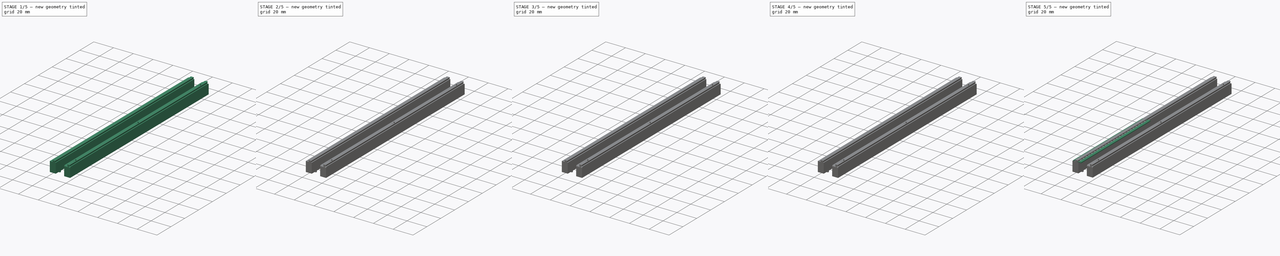
[diagram: build sequence overview — one tinted view per stage of 5, left to right]
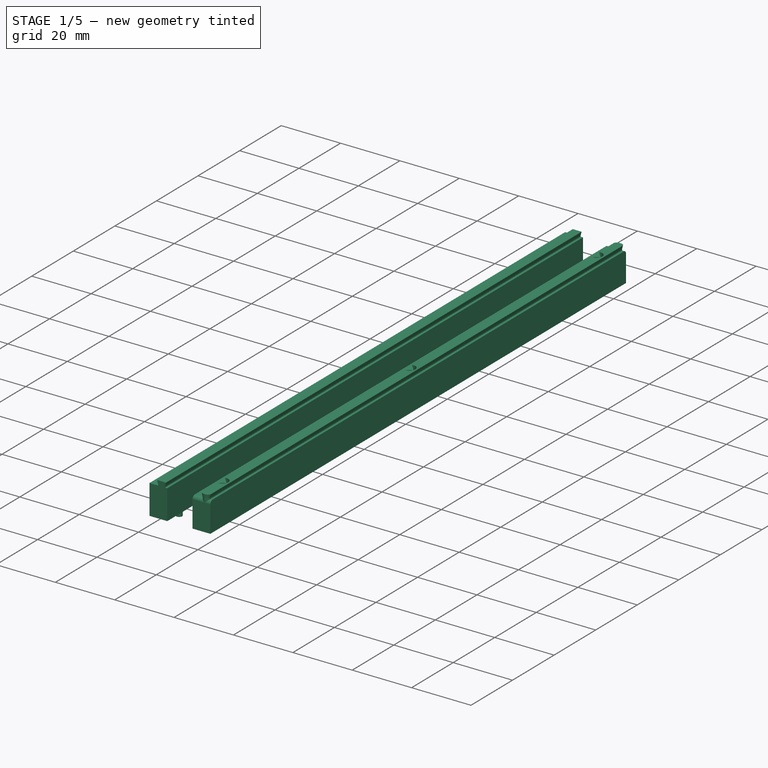
[diagram: stage 1 of 5 — iso view after this stage's code; geometry added in this stage tinted green]
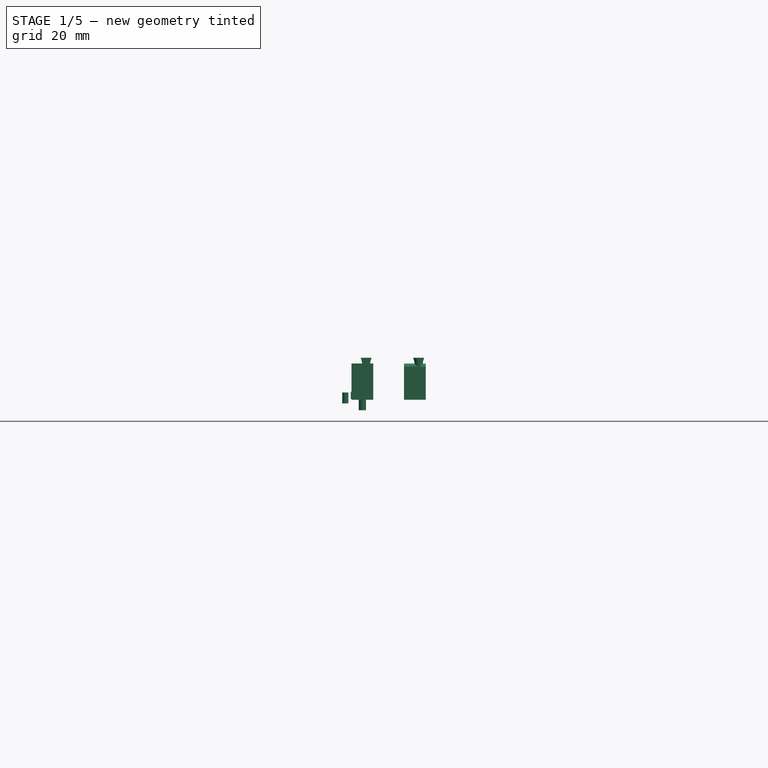
[diagram: stage 1 of 5 — front view after this stage's code; geometry added in this stage tinted green]
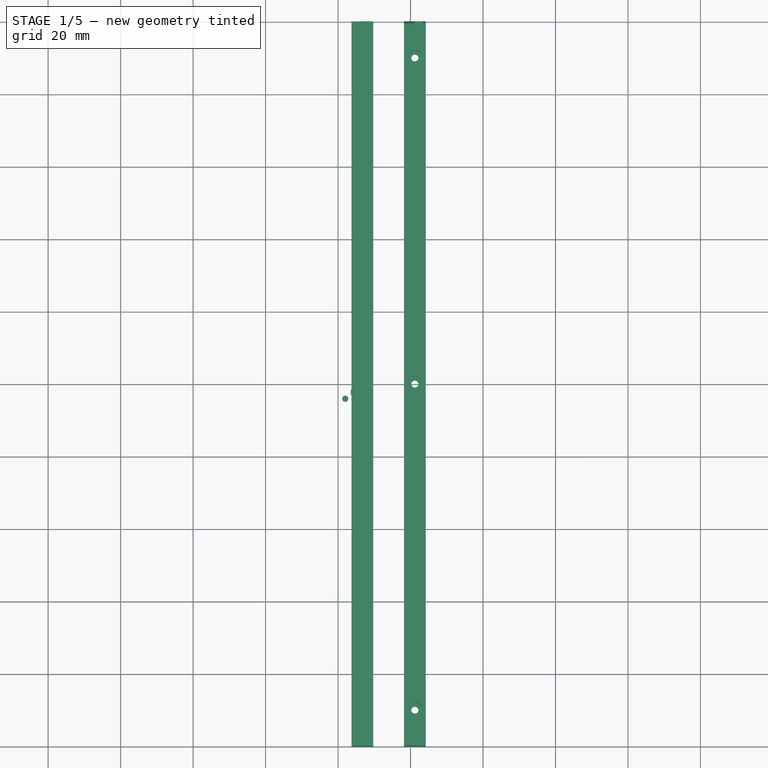
[diagram: stage 1 of 5 — top view after this stage's code; geometry added in this stage tinted green]
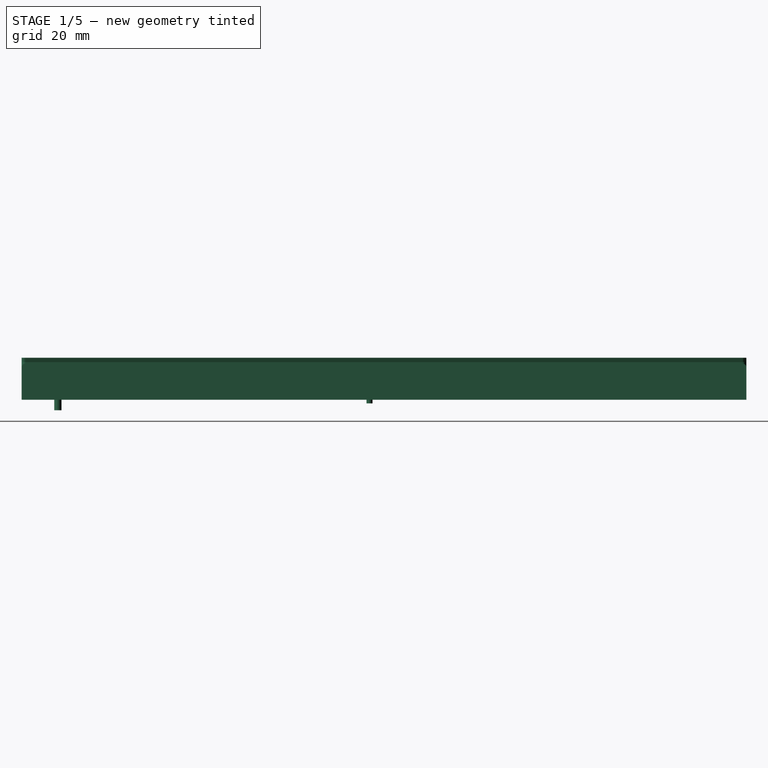
[diagram: stage 1 of 5 — right view after this stage's code; geometry added in this stage tinted green]
FCSTD DOCUMENT  (FreeCAD 0.15R4671 (Git))
Label: strip_feeder_single
License: CreativeCommons Attribution-ShareAlike
LicenseURL: http://creativecommons.org/licenses/by-sa/4.0/
objects: Part::Box×27, Part::Prism×25, Sketcher::SketchObject×5, PartDesign::Pocket×5, Part::Feature×2, PartDesign::LinearPattern×2, Part::MultiFuse×1, Part::Cut×1, Part::FeaturePython×1, PartDesign::Fillet×1, Part::Mirroring×1
note: 76 computed .brp shape members not serialized (recipe doc carries the construction recipe); baked Part::Feature solids carry a one-line shape summary decoded from their .brp

FEATURE [Part::Prism] prism123
  Circumradius = 0.835
  Height = 3
  Placement = pos=(2,96,-1) rot=(0,0,1;0rad)
  Polygon = 20
FEATURE [Part::Box] cube128
  Height = 2
  Length = 2
  Placement = pos=(3.5,97,0.2) rot=(0,0,1;0rad)
  Width = 1.5
FEATURE [Part::Box] Box  label="Cube"
  Height = 11.6
  Length = 70
  Placement = pos=(-7.5,0,0) rot=(0,0,1;0rad)
  Width = 200
FEATURE [Sketcher::SketchObject] Sketch002  label="base"
  Placement = pos=(-7.5,0,0) rot=(1,0,0;1.5708rad)
  Support = -> Box [Face3]
  sketch-geometry (17):
    g0: LineSegment [constr] StartX=0 StartY=11.6 StartZ=0 EndX=0 EndY=0 EndZ=0
    g1: LineSegment [constr] StartX=0 StartY=0 StartZ=0 EndX=16 EndY=0 EndZ=0
    g2: LineSegment [constr] StartX=16 StartY=11.6 StartZ=0 EndX=13.75 EndY=11.6 EndZ=0
    g3: LineSegment StartX=14.1 StartY=10 StartZ=0 EndX=11.2 EndY=10 EndZ=0
    g4: LineSegment [constr] StartX=2.25 StartY=11.6 StartZ=0 EndX=0 EndY=11.6 EndZ=0
    g5: LineSegment [constr] StartX=16 StartY=11.6 StartZ=0 EndX=16 EndY=0 EndZ=0
    g6: LineSegment [constr] StartX=0 StartY=0 StartZ=0 EndX=1.9 EndY=10 EndZ=0
    g7: LineSegment [constr] StartX=16 StartY=0 StartZ=0 EndX=14.1 EndY=10 EndZ=0
    g8: LineSegment StartX=1.9 StartY=10 StartZ=0 EndX=1.9 EndY=10.4 EndZ=0
    g9: LineSegment StartX=1.9 StartY=10.4 StartZ=0 EndX=2.25 EndY=11.6 EndZ=0
    g10: LineSegment StartX=13.75 StartY=11.6 StartZ=0 EndX=14.1 EndY=10.4 EndZ=0
    g11: LineSegment StartX=14.1 StartY=10.4 StartZ=0 EndX=14.1 EndY=10 EndZ=0
    g12: LineSegment StartX=11.2 StartY=10 StartZ=0 EndX=11.2 EndY=3 EndZ=0
    g13: LineSegment StartX=11.2 StartY=3 StartZ=0 EndX=2.7 EndY=3 EndZ=0
    g14: LineSegment StartX=2.7 StartY=3 StartZ=0 EndX=2.7 EndY=10 EndZ=0
    g15: LineSegment StartX=2.7 StartY=10 StartZ=0 EndX=1.9 EndY=10 EndZ=0
    g16: LineSegment StartX=2.25 StartY=11.6 StartZ=0 EndX=13.75 EndY=11.6 EndZ=0
  constraints (47):
    c: Vertical(g0)
    c: Coincident(g0,g1)
    c: Horizontal(g1)
    c: Horizontal(g2)
    c: Horizontal(g3)
    c: Horizontal(g4)
    c: Coincident(g0,g4)
    c: Coincident(g5,g2)
    c: Coincident(g5,g1)
    c: Vertical(g5)
    c: Equal(g2,g4)
    c: Coincident(g6,g0)
    c: Coincident(g6,g15)
    c: Coincident(g7,g1)
    c: Equal(g7,g6)
    c: DistanceX(g4,g2) = 11.5
    c: DistanceX(g1) = 16
    c: Coincident(g15,g8)
    c: Vertical(g8)
    c: Coincident(g8,g9)
    c: Coincident(g9,g4)
    c: Coincident(g2,g10)
    c: Coincident(g10,g11)
    c: Coincident(g11,g3)
    c: Vertical(g11)
    c: Equal(g11,g8)
    c: Equal(g10,g9)
    c: DistanceY(g11) = -0.4
    c: Coincident(g7,g3)
    c: Coincident(g12,g13)
    c: Coincident(g13,g14)
    c: Horizontal(g13)
    c: Vertical(g12)
    c: Vertical(g14)
    c: Tangent(g3,g15)
    c: Coincident(g14,g15)
    c: Coincident(g12,g3)
    c: DistanceX(g6,g3) = 12.2
    c: DistanceY(g14) = 7
    c: DistanceX(g15) = -0.8
    c: Distance(g4,g15) = 1.6
    c: DistanceX(g13) = -8.5
    c: Distance(g14,g1) = 10
    c: DistanceX(g0) = 0
    c: DistanceY(g0) = 0
    c: Coincident(g4,g16)
    c: Coincident(g16,g2)
FEATURE [PartDesign::Pocket] Pocket
  Length = 5
  Placement = pos=(-7.5,0,0) rot=(0,0,1;0rad)
  Sketch = -> Sketch002
  Type = 1
FEATURE [PartDesign::LinearPattern] LinearPattern
  Direction = -> Sketch002 [H_Axis]
  Length = 58
  Occurrences = 5
  Originals = -> [Pocket]
  Placement = pos=(-7.5,0,0) rot=(0,0,1;0rad)
FEATURE [Sketcher::SketchObject] Sketch
  ExternalGeometry = -> [LinearPattern]
  Placement = pos=(-7.5,0,0) rot=(1,0,0;1.5708rad)
  Support = -> LinearPattern [Face2]
  sketch-geometry (8):
    g0: LineSegment StartX=11.2 StartY=15.1915 StartZ=0 EndX=17.2 EndY=15.1915 EndZ=0
    g1: LineSegment StartX=17.2 StartY=15.1915 StartZ=0 EndX=17.2 EndY=-5.90318 EndZ=0
    g2: LineSegment StartX=17.2 StartY=-5.90318 StartZ=0 EndX=11.2 EndY=-5.90318 EndZ=0
    g3: LineSegment StartX=11.2 StartY=-5.90318 StartZ=0 EndX=11.2 EndY=15.1915 EndZ=0
    g4: LineSegment StartX=-5.79076 StartY=25.732 StartZ=0 EndX=76.618 EndY=25.732 EndZ=0
    g5: LineSegment StartX=76.618 StartY=25.732 StartZ=0 EndX=76.618 EndY=-13.1532 EndZ=0
    g6: LineSegment StartX=76.618 StartY=-13.1532 StartZ=0 EndX=-5.79076 EndY=-13.1532 EndZ=0
    g7: LineSegment StartX=-5.79076 StartY=-13.1532 StartZ=0 EndX=-5.79076 EndY=25.732 EndZ=0
  constraints (18):
    c: Coincident(g2,g3)
    c: Horizontal(g2)
    c: Horizontal(g0)
    c: Vertical(g3)
    c: Vertical(g1)
    c: Vertical(g5)
    c: Vertical(g7)
    c: Horizontal(g4)
    c: Horizontal(g6)
    c: Coincident(g0,g3)
    c: Coincident(g0,g1)
    c: Coincident(g1,g2)
    c: Coincident(g4,g7)
    c: Coincident(g4,g5)
    c: Coincident(g5,g6)
    c: Coincident(g6,g7)
    c: PointOnObject(g-3,g3)
    c: PointOnObject(g-4,g1)
FEATURE [PartDesign::Pocket] Pocket001
  Length = 5
  Placement = pos=(-7.5,0,0) rot=(0,0,1;0rad)
  Sketch = -> Sketch
  Type = 1
FEATURE [Part::Feature] tape_12mm004  label="tape_12mm002"
  Placement = pos=(1,0,0) rot=(0,0,1;0rad)
  shape: bbox 12 x 200 x 0.8 mm, 1246 faces, 0 solids (baked)
FEATURE [Sketcher::SketchObject] Sketch003
  ExternalGeometry = -> [Pocket001]
  Placement = pos=(8.9,0,0) rot=(0.57735,0.57735,0.57735;2.0944rad)
  Support = -> Pocket001 [Face3]
  sketch-geometry (5):
    g0: Circle CenterX=21.45 CenterY=-100 CenterZ=0 NormalX=0 NormalY=0 NormalZ=1 Radius=1
    g1: LineSegment [constr] StartX=21.45 StartY=-190 StartZ=0 EndX=21.45 EndY=-100 EndZ=0
    g2: LineSegment [constr] StartX=21.45 StartY=-100 StartZ=0 EndX=21.45 EndY=-10 EndZ=0
    g3: Circle CenterX=21.45 CenterY=-10 CenterZ=0 NormalX=0 NormalY=0 NormalZ=1 Radius=1
    g4: Circle CenterX=21.45 CenterY=-190 CenterZ=0 NormalX=0 NormalY=0 NormalZ=1 Radius=1
  constraints (11):
    c: Radius(g0) = 1
    c: Coincident(g1,g0)
    c: Vertical(g1)
    c: Coincident(g1,g2)
    c: Vertical(g2)
    c: Equal(g2,g1)
    c: Coincident(g3,g2)
    c: Coincident(g4,g1)
    c: Equal(g4,g3)
    c: Equal(g3,g0)
    c: DistanceY(g2) = 90
FEATURE [PartDesign::Pocket] Pocket002
  Length = 5
  Placement = pos=(-7.5,0,0) rot=(0,0,1;0rad)
  Sketch = -> Sketch003
  Type = 1
FEATURE [PartDesign::LinearPattern] LinearPattern001
  Direction = -> Sketch003 [H_Axis]
  Length = 30
  Occurrences = 3
  Originals = -> [Pocket002]
  Placement = pos=(-7.5,0,0) rot=(0,0,1;0rad)
FEATURE [Sketcher::SketchObject] Sketch004
  ExternalGeometry = -> [Pocket002]
  Placement = pos=(-7.5,0,0) rot=(1,0,0;3.14159rad)
  Support = -> Pocket002 [Face9]
  sketch-geometry (5):
    g0: Circle CenterX=14.2 CenterY=-190 CenterZ=0 NormalX=0 NormalY=0 NormalZ=1 Radius=1
    g1: Circle CenterX=14.2 CenterY=-100 CenterZ=0 NormalX=0 NormalY=0 NormalZ=1 Radius=1
    g2: Circle CenterX=14.2 CenterY=-10 CenterZ=0 NormalX=0 NormalY=0 NormalZ=1 Radius=1
    g3: LineSegment [constr] StartX=14.2 StartY=-10 StartZ=0 EndX=14.2 EndY=-100 EndZ=0
    g4: LineSegment [constr] StartX=14.2 StartY=-100 StartZ=0 EndX=14.2 EndY=-190 EndZ=0
  constraints (12):
    c: Symmetric(g-3,g-4,g1)
    c: Equal(g0,g1)
    c: Equal(g1,g2)
    c: Radius(g2) = 1
    c: Coincident(g3,g2)
    c: Coincident(g3,g1)
    c: Vertical(g3)
    c: Coincident(g3,g4)
    c: Coincident(g4,g0)
    c: Vertical(g4)
    c: Equal(g3,g4)
    c: DistanceY(g4) = -90
FEATURE [PartDesign::Pocket] Pocket003
  Length = 15
  Placement = pos=(-7.5,0,0) rot=(0,0,1;0rad)
  Sketch = -> Sketch004
  Type = 0
FEATURE [Sketcher::SketchObject] Sketch005
  ExternalGeometry = -> [Pocket003]
  Placement = pos=(-7.5,0,11.6) rot=(0,0,1;0rad)
  Support = -> Pocket003 [Face6]
  sketch-geometry (3):
    g0: Circle CenterX=14.2 CenterY=190 CenterZ=0 NormalX=0 NormalY=0 NormalZ=1 Radius=2
    g1: Circle CenterX=14.2 CenterY=100 CenterZ=0 NormalX=0 NormalY=0 NormalZ=1 Radius=2
    g2: Circle CenterX=14.2 CenterY=10 CenterZ=0 NormalX=0 NormalY=0 NormalZ=1 Radius=2
  constraints (6):
    c: Coincident(g0,g-5)
    c: Radius(g0) = 2
    c: Coincident(g1,g-4)
    c: Coincident(g2,g-3)
    c: Equal(g2,g1)
    c: Equal(g1,g0)
FEATURE [PartDesign::Pocket] Pocket004
  Length = 4.5
  Placement = pos=(-7.5,0,0) rot=(0,0,1;0rad)
  Sketch = -> Sketch005
  Type = 0
FEATURE [Part::FeaturePython] Screw  label="M2x10-Screw"  # Fasteners workbench fastener (typed FeaturePython)
  Placement = pos=(6.7,10,7.1) rot=(0,0,1;0rad)
  baseObject = -> Pocket004 [Edge79]
  diameter = 2
  invert = true
  length = 5
  matchOuter = true
  offset = 0
  thread = false
  type = 16
FEATURE [PartDesign::Fillet] Fillet
  Base = -> Pocket004 [Edge9,Edge8,Edge7,Edge3,Edge4,Edge5,Edge39,Edge54,Edge53,Edge22,Edge20,Edge18]
  Placement = pos=(-7.5,0,0) rot=(0,0,1;0rad)
  Radius = 1.1
FEATURE [Part::Mirroring] Part__Mirroring001  label="Fillet (Mirror #1)"
  Base = (0,0,0)
  Normal = (1,0,0)
  Placement = pos=(14.5,200,0) rot=(0,0,1;3.14159rad)
  Source = -> Fillet
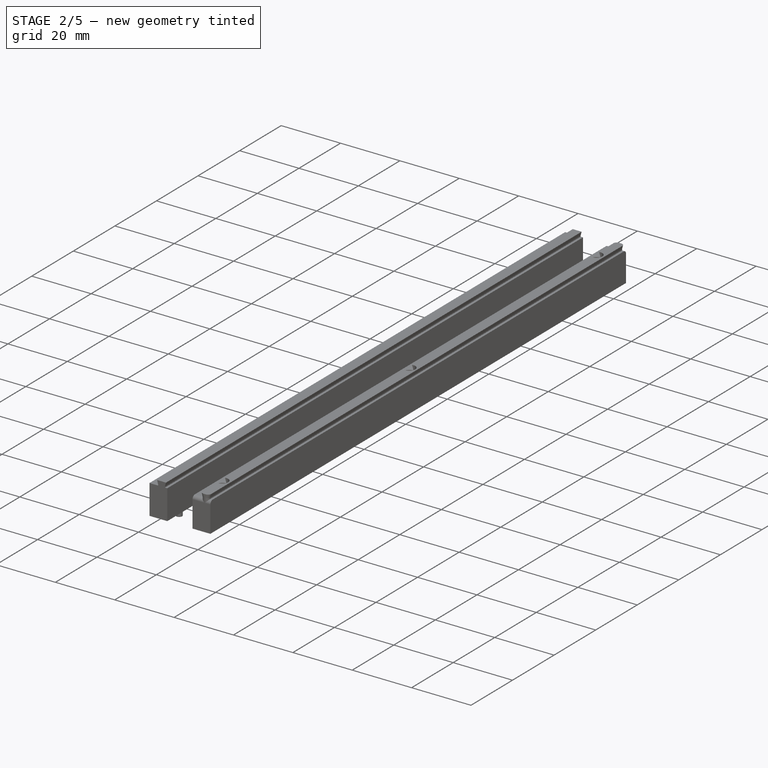
[diagram: stage 2 of 5 — iso view after this stage's code; geometry added in this stage tinted green]
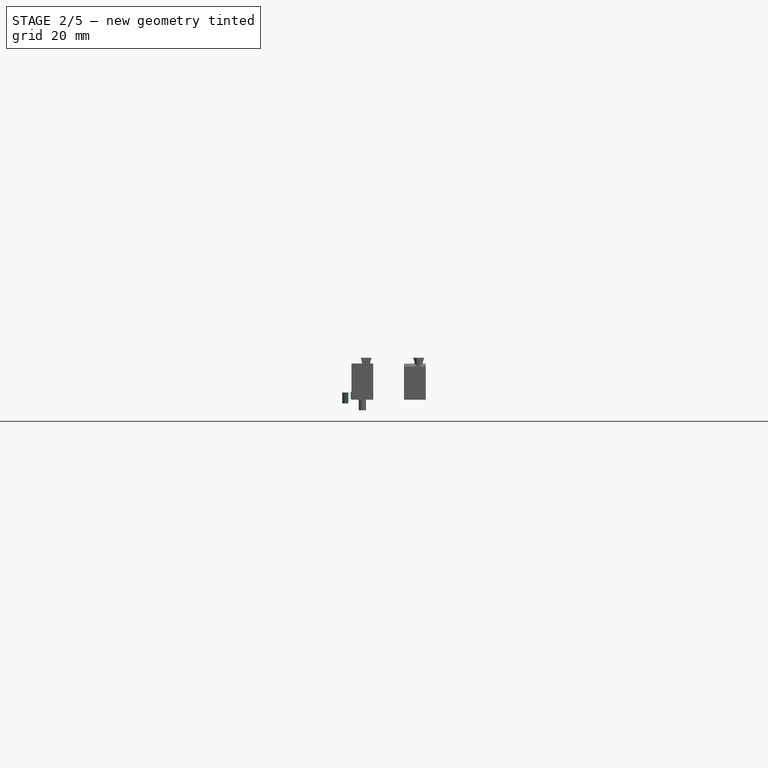
[diagram: stage 2 of 5 — front view after this stage's code; geometry added in this stage tinted green]
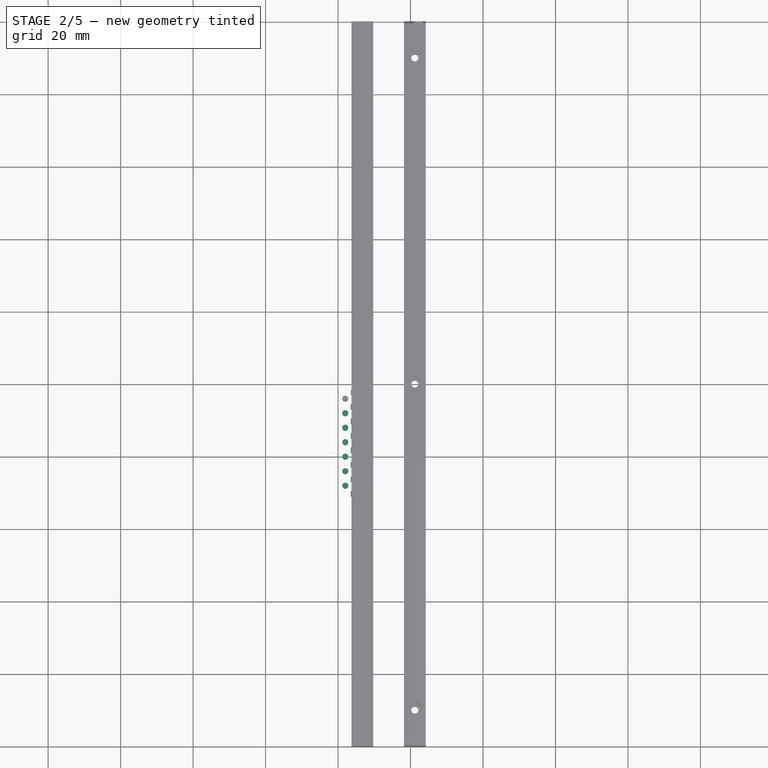
[diagram: stage 2 of 5 — top view after this stage's code; geometry added in this stage tinted green]
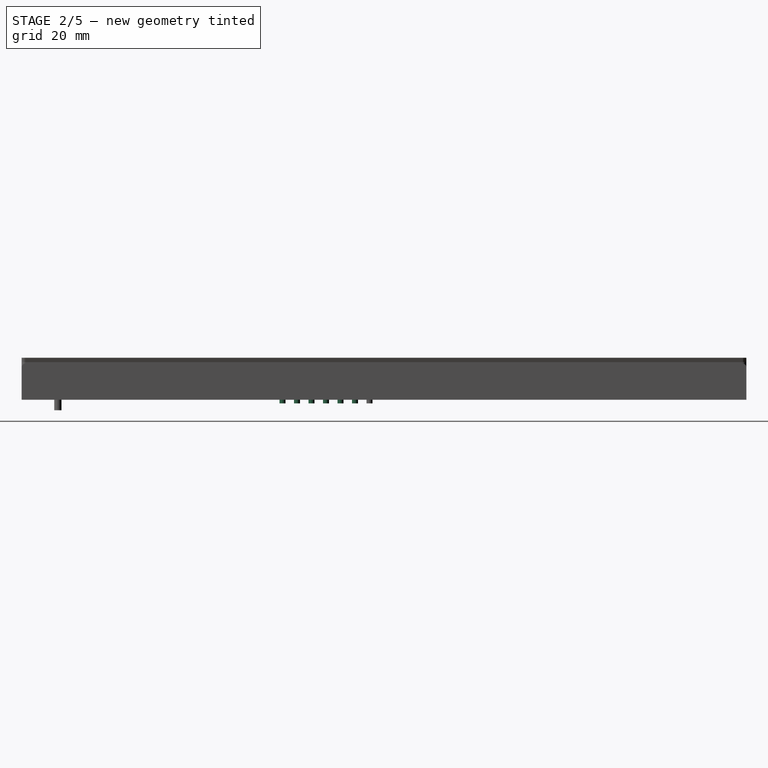
[diagram: stage 2 of 5 — right view after this stage's code; geometry added in this stage tinted green]
FEATURE [Part::Box] cube121
  Height = 2
  Length = 2
  Placement = pos=(3.5,69,0.2) rot=(0,0,1;0rad)
  Width = 1.5
FEATURE [Part::Prism] prism117
  Circumradius = 0.835
  Height = 3
  Placement = pos=(2,72,-1) rot=(0,0,1;0rad)
  Polygon = 20
FEATURE [Part::Box] cube122
  Height = 2
  Length = 2
  Placement = pos=(3.5,73,0.2) rot=(0,0,1;0rad)
  Width = 1.5
FEATURE [Part::Prism] prism118
  Circumradius = 0.835
  Height = 3
  Placement = pos=(2,76,-1) rot=(0,0,1;0rad)
  Polygon = 20
FEATURE [Part::Box] cube123
  Height = 2
  Length = 2
  Placement = pos=(3.5,77,0.2) rot=(0,0,1;0rad)
  Width = 1.5
FEATURE [Part::Prism] prism119
  Circumradius = 0.835
  Height = 3
  Placement = pos=(2,80,-1) rot=(0,0,1;0rad)
  Polygon = 20
FEATURE [Part::Box] cube124
  Height = 2
  Length = 2
  Placement = pos=(3.5,81,0.2) rot=(0,0,1;0rad)
  Width = 1.5
FEATURE [Part::Prism] prism120
  Circumradius = 0.835
  Height = 3
  Placement = pos=(2,84,-1) rot=(0,0,1;0rad)
  Polygon = 20
FEATURE [Part::Box] cube125
  Height = 2
  Length = 2
  Placement = pos=(3.5,85,0.2) rot=(0,0,1;0rad)
  Width = 1.5
FEATURE [Part::Prism] prism121
  Circumradius = 0.835
  Height = 3
  Placement = pos=(2,88,-1) rot=(0,0,1;0rad)
  Polygon = 20
FEATURE [Part::Box] cube126
  Height = 2
  Length = 2
  Placement = pos=(3.5,89,0.2) rot=(0,0,1;0rad)
  Width = 1.5
FEATURE [Part::Prism] prism122
  Circumradius = 0.835
  Height = 3
  Placement = pos=(2,92,-1) rot=(0,0,1;0rad)
  Polygon = 20
FEATURE [Part::Box] cube127
  Height = 2
  Length = 2
  Placement = pos=(3.5,93,0.2) rot=(0,0,1;0rad)
  Width = 1.5
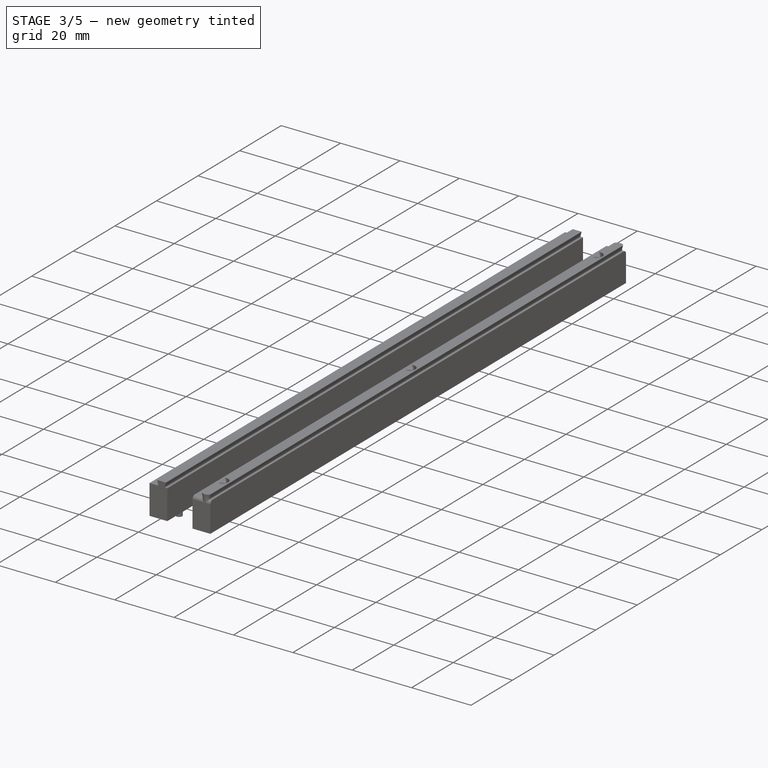
[diagram: stage 3 of 5 — iso view after this stage's code; geometry added in this stage tinted green]
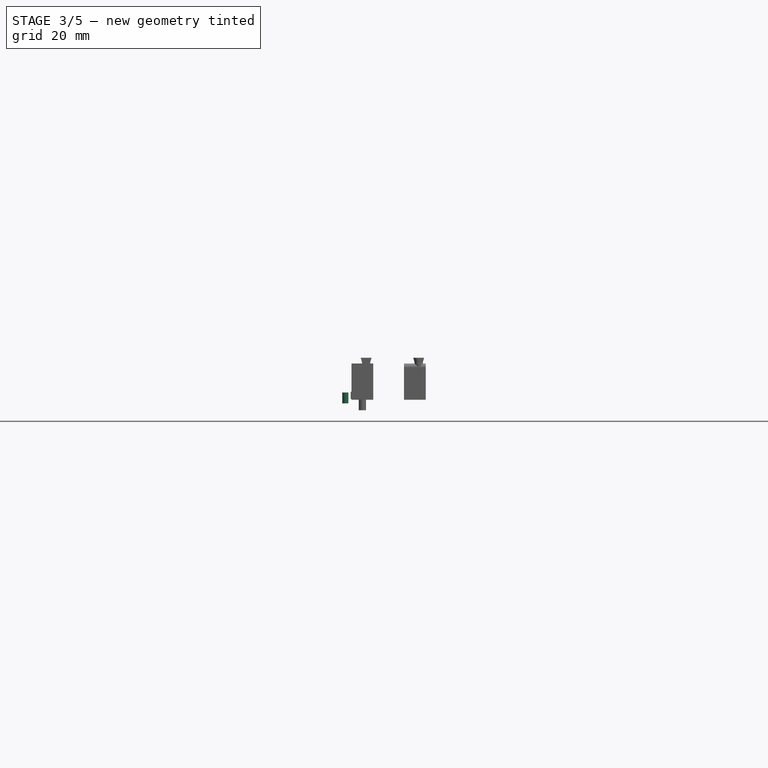
[diagram: stage 3 of 5 — front view after this stage's code; geometry added in this stage tinted green]
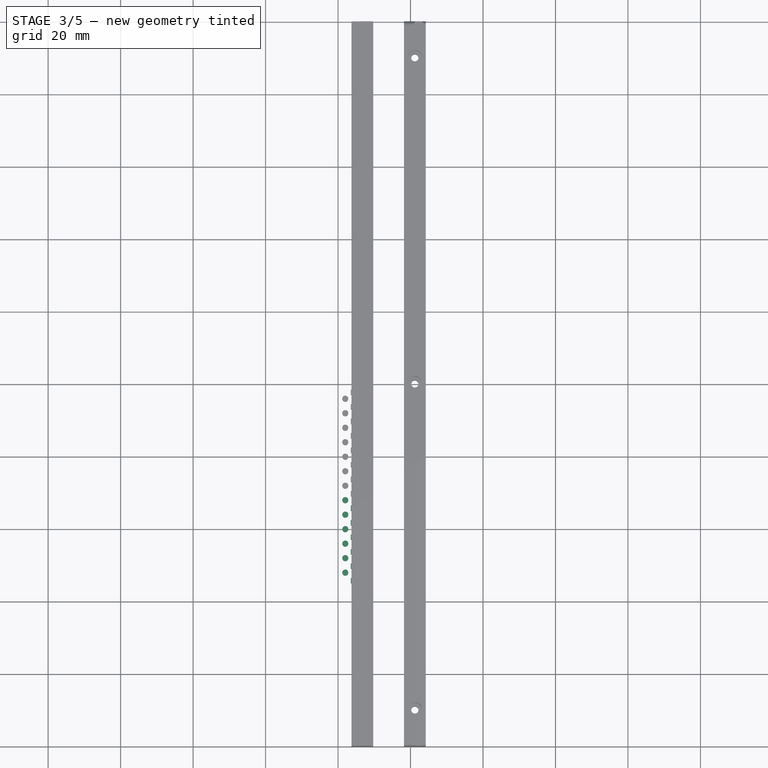
[diagram: stage 3 of 5 — top view after this stage's code; geometry added in this stage tinted green]
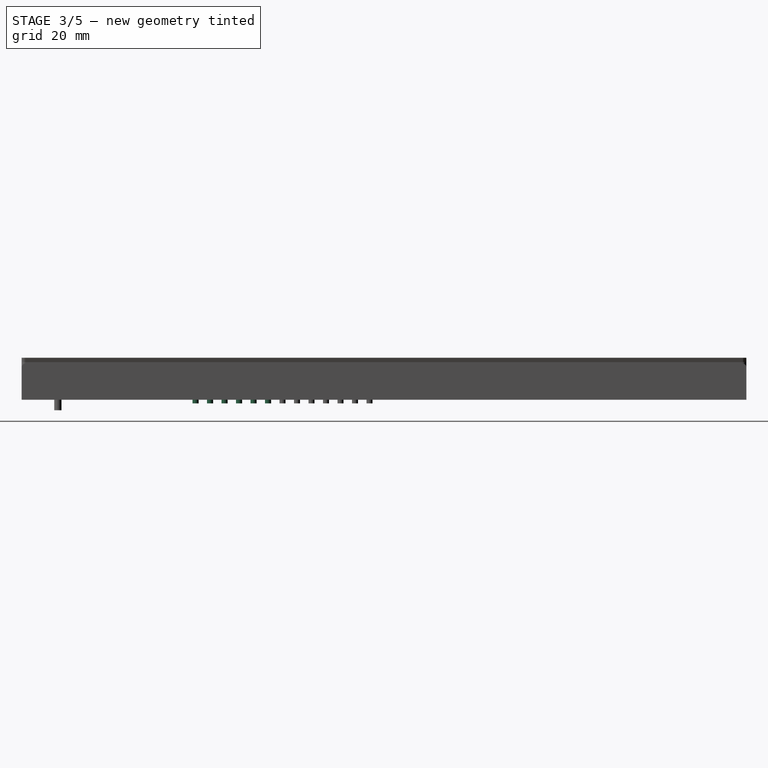
[diagram: stage 3 of 5 — right view after this stage's code; geometry added in this stage tinted green]
FEATURE [Part::Box] cube115
  Height = 2
  Length = 2
  Placement = pos=(3.5,45,0.2) rot=(0,0,1;0rad)
  Width = 1.5
FEATURE [Part::Prism] prism111
  Circumradius = 0.835
  Height = 3
  Placement = pos=(2,48,-1) rot=(0,0,1;0rad)
  Polygon = 20
FEATURE [Part::Box] cube116
  Height = 2
  Length = 2
  Placement = pos=(3.5,49,0.2) rot=(0,0,1;0rad)
  Width = 1.5
FEATURE [Part::Prism] prism112
  Circumradius = 0.835
  Height = 3
  Placement = pos=(2,52,-1) rot=(0,0,1;0rad)
  Polygon = 20
FEATURE [Part::Box] cube117
  Height = 2
  Length = 2
  Placement = pos=(3.5,53,0.2) rot=(0,0,1;0rad)
  Width = 1.5
FEATURE [Part::Prism] prism113
  Circumradius = 0.835
  Height = 3
  Placement = pos=(2,56,-1) rot=(0,0,1;0rad)
  Polygon = 20
FEATURE [Part::Box] cube118
  Height = 2
  Length = 2
  Placement = pos=(3.5,57,0.2) rot=(0,0,1;0rad)
  Width = 1.5
FEATURE [Part::Prism] prism114
  Circumradius = 0.835
  Height = 3
  Placement = pos=(2,60,-1) rot=(0,0,1;0rad)
  Polygon = 20
FEATURE [Part::Box] cube119
  Height = 2
  Length = 2
  Placement = pos=(3.5,61,0.2) rot=(0,0,1;0rad)
  Width = 1.5
FEATURE [Part::Prism] prism115
  Circumradius = 0.835
  Height = 3
  Placement = pos=(2,64,-1) rot=(0,0,1;0rad)
  Polygon = 20
FEATURE [Part::Box] cube120
  Height = 2
  Length = 2
  Placement = pos=(3.5,65,0.2) rot=(0,0,1;0rad)
  Width = 1.5
FEATURE [Part::Prism] prism116
  Circumradius = 0.835
  Height = 3
  Placement = pos=(2,68,-1) rot=(0,0,1;0rad)
  Polygon = 20
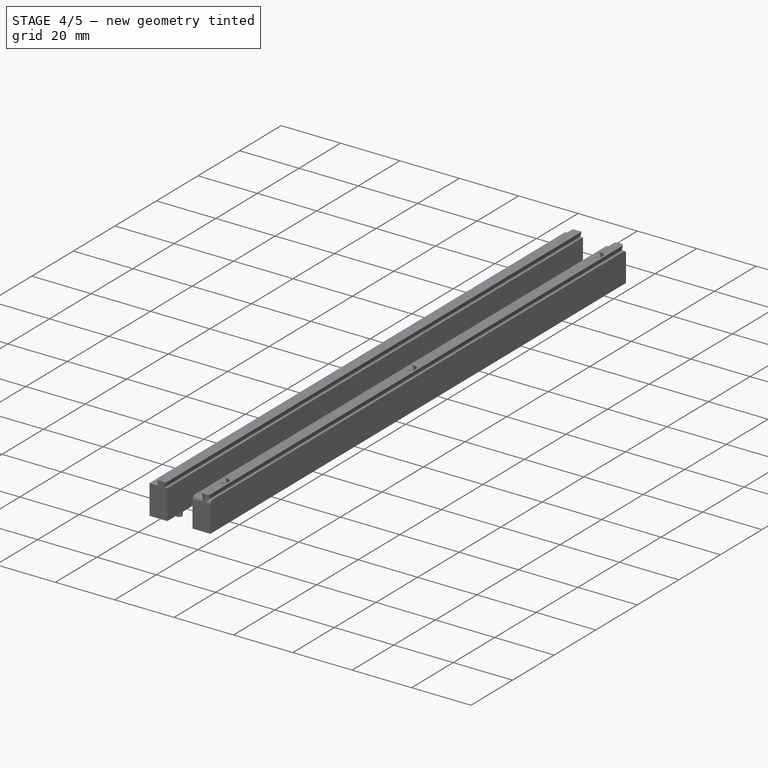
[diagram: stage 4 of 5 — iso view after this stage's code; geometry added in this stage tinted green]
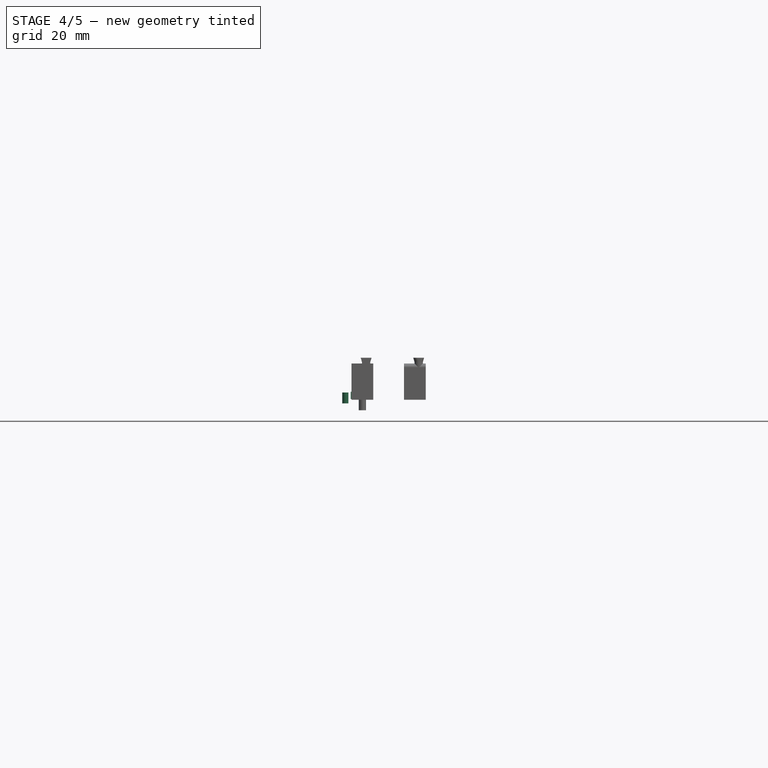
[diagram: stage 4 of 5 — front view after this stage's code; geometry added in this stage tinted green]
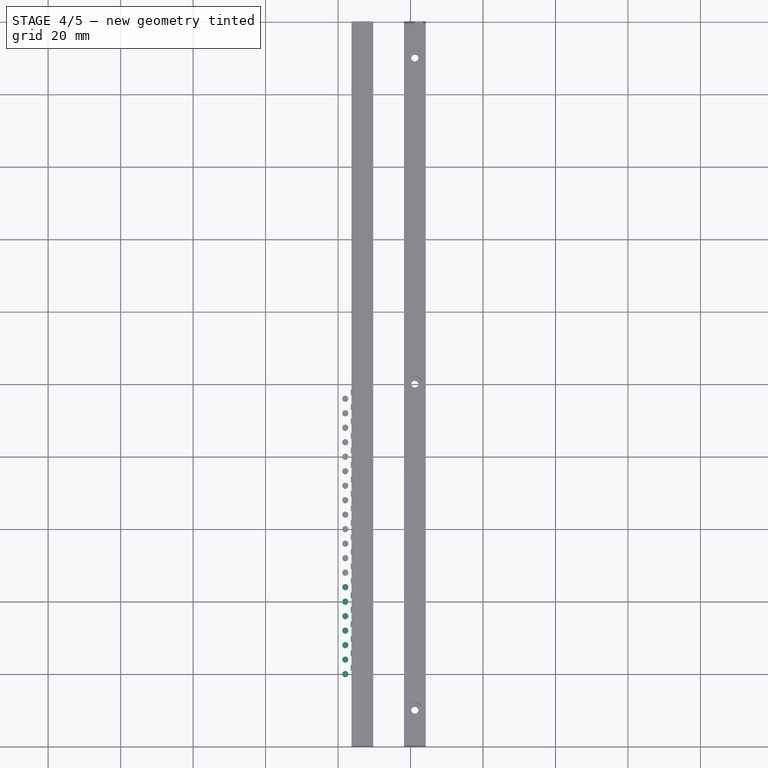
[diagram: stage 4 of 5 — top view after this stage's code; geometry added in this stage tinted green]
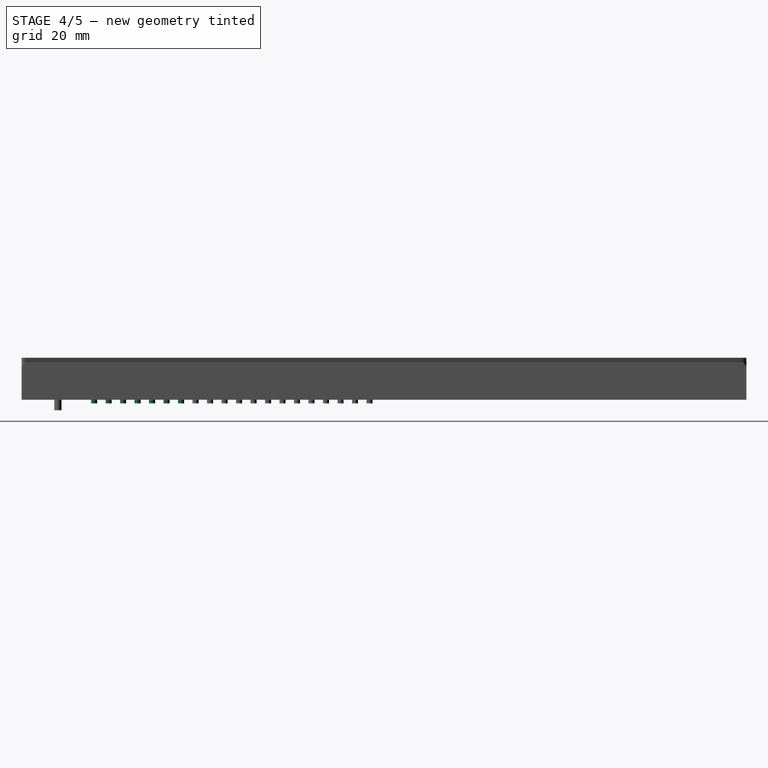
[diagram: stage 4 of 5 — right view after this stage's code; geometry added in this stage tinted green]
FEATURE [Part::Prism] prism104
  Circumradius = 0.835
  Height = 3
  Placement = pos=(2,20,-1) rot=(0,0,1;0rad)
  Polygon = 20
FEATURE [Part::Box] cube109
  Height = 2
  Length = 2
  Placement = pos=(3.5,21,0.2) rot=(0,0,1;0rad)
  Width = 1.5
FEATURE [Part::Prism] prism105
  Circumradius = 0.835
  Height = 3
  Placement = pos=(2,24,-1) rot=(0,0,1;0rad)
  Polygon = 20
FEATURE [Part::Box] cube110
  Height = 2
  Length = 2
  Placement = pos=(3.5,25,0.2) rot=(0,0,1;0rad)
  Width = 1.5
FEATURE [Part::Prism] prism106
  Circumradius = 0.835
  Height = 3
  Placement = pos=(2,28,-1) rot=(0,0,1;0rad)
  Polygon = 20
FEATURE [Part::Box] cube111
  Height = 2
  Length = 2
  Placement = pos=(3.5,29,0.2) rot=(0,0,1;0rad)
  Width = 1.5
FEATURE [Part::Prism] prism107
  Circumradius = 0.835
  Height = 3
  Placement = pos=(2,32,-1) rot=(0,0,1;0rad)
  Polygon = 20
FEATURE [Part::Box] cube112
  Height = 2
  Length = 2
  Placement = pos=(3.5,33,0.2) rot=(0,0,1;0rad)
  Width = 1.5
FEATURE [Part::Prism] prism108
  Circumradius = 0.835
  Height = 3
  Placement = pos=(2,36,-1) rot=(0,0,1;0rad)
  Polygon = 20
FEATURE [Part::Box] cube113
  Height = 2
  Length = 2
  Placement = pos=(3.5,37,0.2) rot=(0,0,1;0rad)
  Width = 1.5
FEATURE [Part::Prism] prism109
  Circumradius = 0.835
  Height = 3
  Placement = pos=(2,40,-1) rot=(0,0,1;0rad)
  Polygon = 20
FEATURE [Part::Box] cube114
  Height = 2
  Length = 2
  Placement = pos=(3.5,41,0.2) rot=(0,0,1;0rad)
  Width = 1.5
FEATURE [Part::Prism] prism110
  Circumradius = 0.835
  Height = 3
  Placement = pos=(2,44,-1) rot=(0,0,1;0rad)
  Polygon = 20
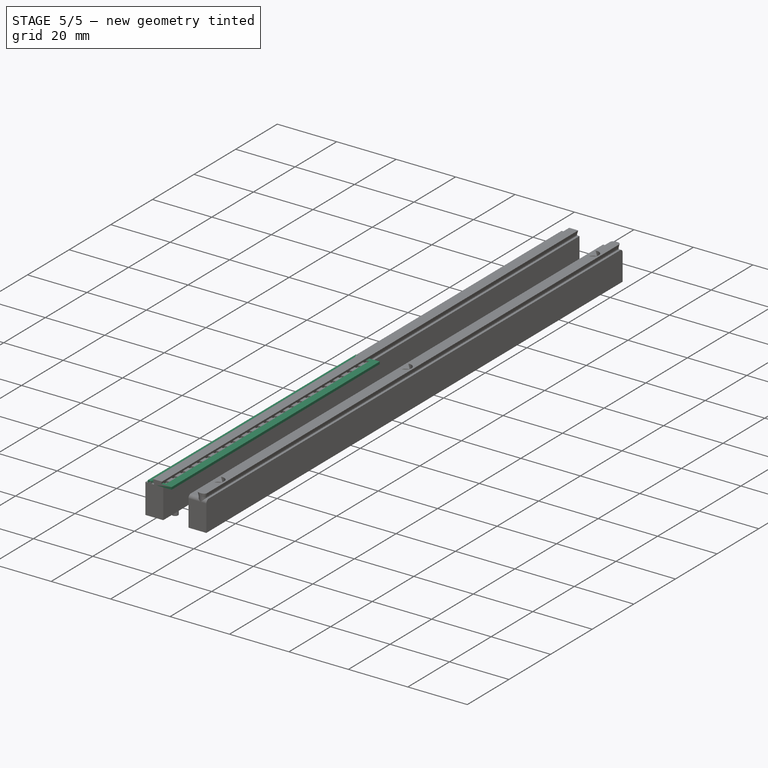
[diagram: stage 5 of 5 — iso view after this stage's code; geometry added in this stage tinted green]
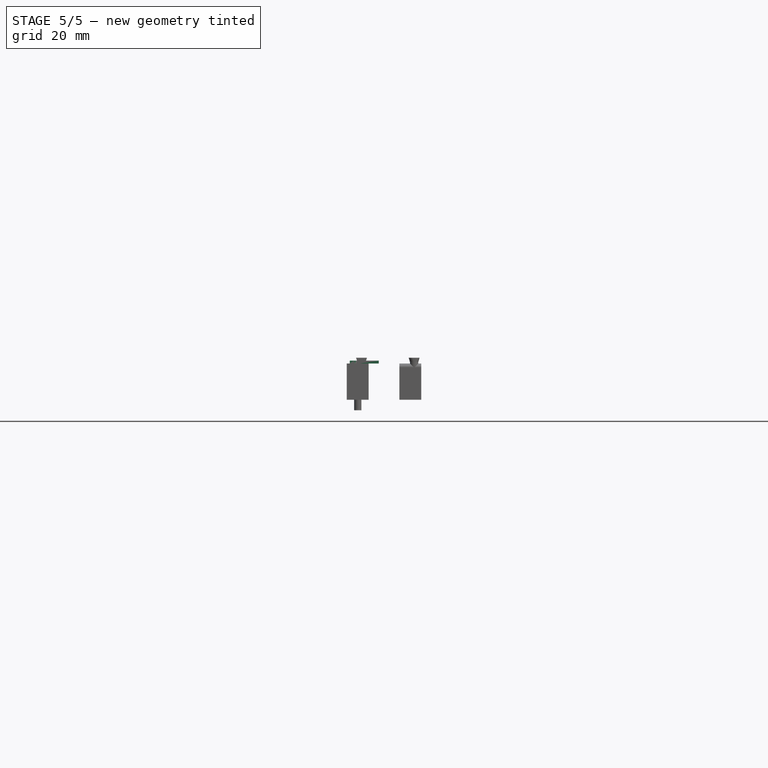
[diagram: stage 5 of 5 — front view after this stage's code; geometry added in this stage tinted green]
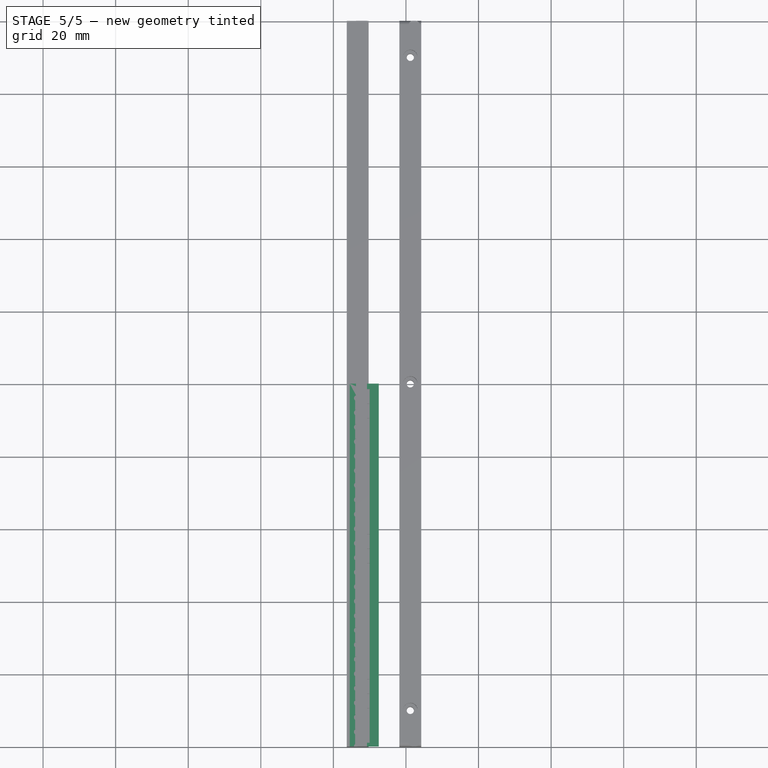
[diagram: stage 5 of 5 — top view after this stage's code; geometry added in this stage tinted green]
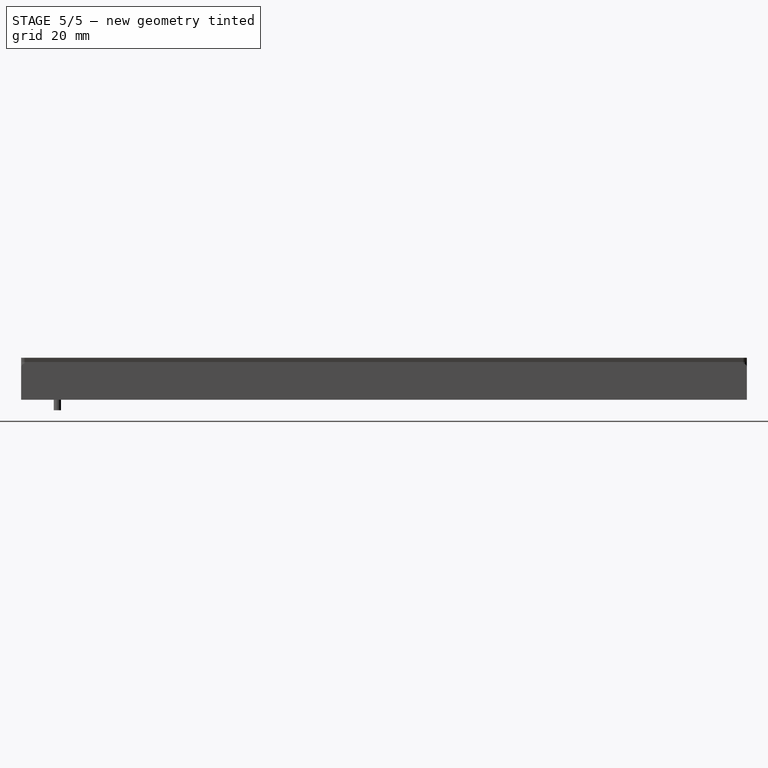
[diagram: stage 5 of 5 — right view after this stage's code; geometry added in this stage tinted green]
FEATURE [Part::Feature] Part__Mirroring  label="Fillet print"
  Placement = pos=(-12,99,-1) rot=(1,0,0;1.5708rad)
  shape: bbox 58 x 98 x 10 mm, 92 faces (baked)
FEATURE [Part::Box] cube103
  Height = 0.8
  Length = 8
  Width = 100
FEATURE [Part::Prism] prism099
  Circumradius = 0.835
  Height = 3
  Placement = pos=(2,0,-1) rot=(0,0,1;0rad)
  Polygon = 20
FEATURE [Part::Box] cube104
  Height = 2
  Length = 2
  Placement = pos=(3.5,1,0.2) rot=(0,0,1;0rad)
  Width = 1.5
FEATURE [Part::Prism] prism100
  Circumradius = 0.835
  Height = 3
  Placement = pos=(2,4,-1) rot=(0,0,1;0rad)
  Polygon = 20
FEATURE [Part::Box] cube105
  Height = 2
  Length = 2
  Placement = pos=(3.5,5,0.2) rot=(0,0,1;0rad)
  Width = 1.5
FEATURE [Part::Prism] prism101
  Circumradius = 0.835
  Height = 3
  Placement = pos=(2,8,-1) rot=(0,0,1;0rad)
  Polygon = 20
FEATURE [Part::Box] cube106
  Height = 2
  Length = 2
  Placement = pos=(3.5,9,0.2) rot=(0,0,1;0rad)
  Width = 1.5
FEATURE [Part::Prism] prism102
  Circumradius = 0.835
  Height = 3
  Placement = pos=(2,12,-1) rot=(0,0,1;0rad)
  Polygon = 20
FEATURE [Part::Box] cube107
  Height = 2
  Length = 2
  Placement = pos=(3.5,13,0.2) rot=(0,0,1;0rad)
  Width = 1.5
FEATURE [Part::Prism] prism103
  Circumradius = 0.835
  Height = 3
  Placement = pos=(2,16,-1) rot=(0,0,1;0rad)
  Polygon = 20
FEATURE [Part::Box] cube108
  Height = 2
  Length = 2
  Placement = pos=(3.5,17,0.2) rot=(0,0,1;0rad)
  Width = 1.5
FEATURE [Part::MultiFuse] Group003
  Shapes = -> [prism099,cube104,prism100,cube105,prism101,cube106,prism102,cube107,prism103,cube108,prism104,cube109,prism105,cube110,prism106,cube111,prism107,cube112,prism108,cube113,prism109,cube114,prism110,cube115,prism111,cube116,prism112,cube117,prism113,cube118,prism114,cube119,prism115,cube120,prism116,cube121,prism117,cube122,prism118,cube123,prism119,cube124,prism120,cube125,prism121,cube126,prism122,+3 more]
FEATURE [Part::Cut] difference003
  Base = -> cube103
  Placement = pos=(4.5,0,10) rot=(0,0,1;0rad)
  Tool = -> Group003
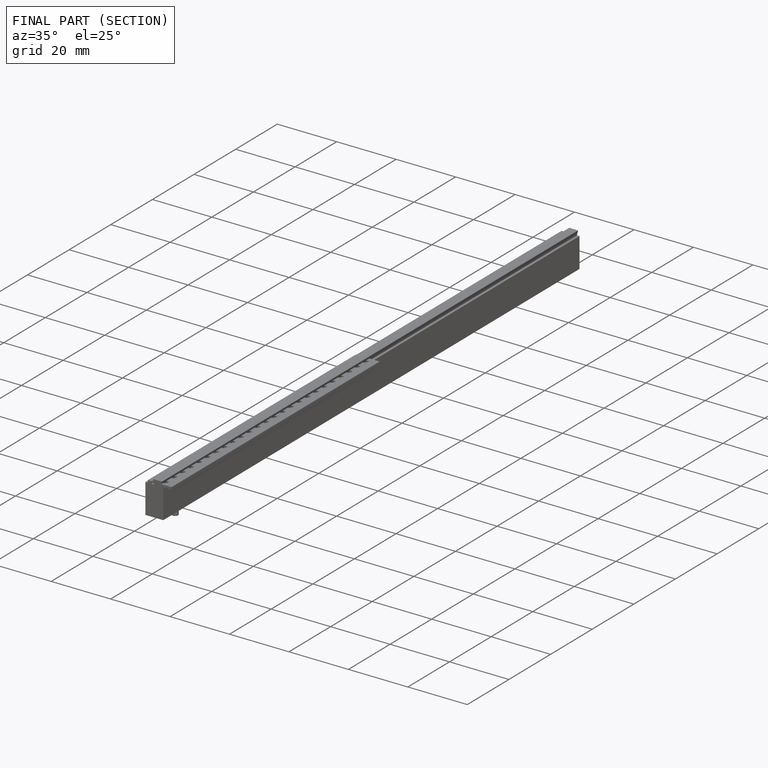
[diagram: finished part — half-section view (interior)]
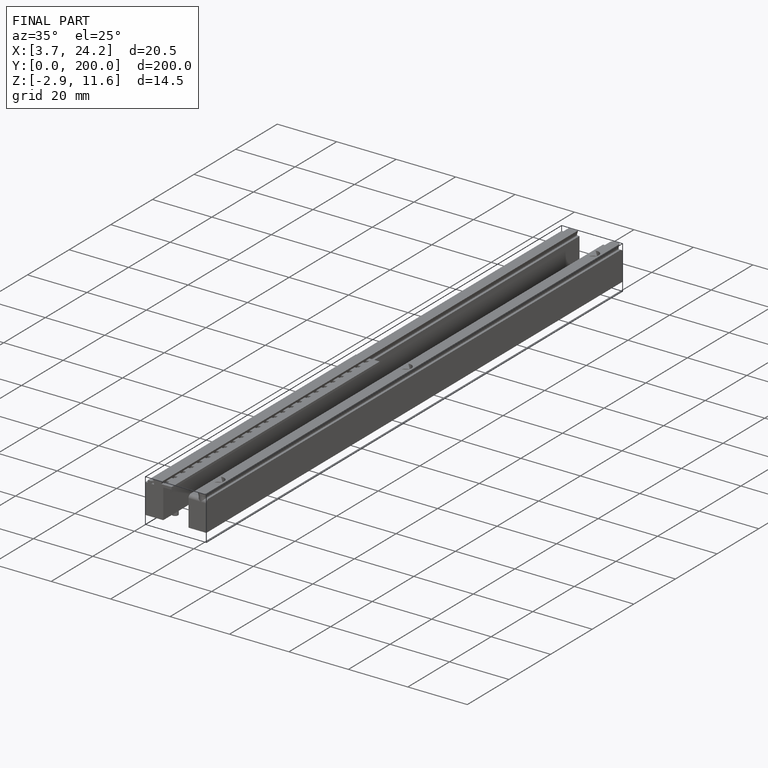
[diagram: finished part — iso view with bounding-box wireframe]
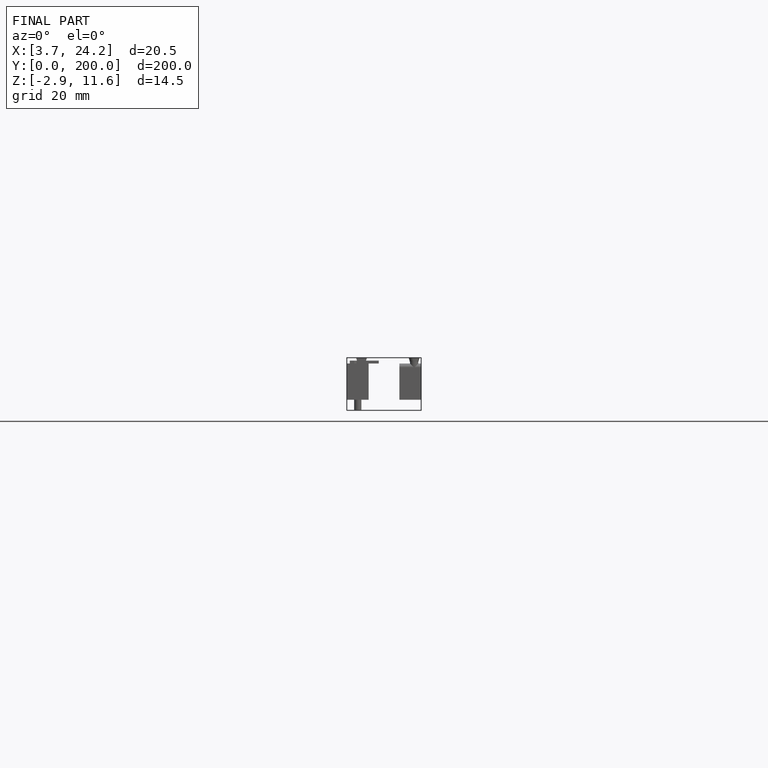
[diagram: finished part — front view with bounding-box wireframe]
